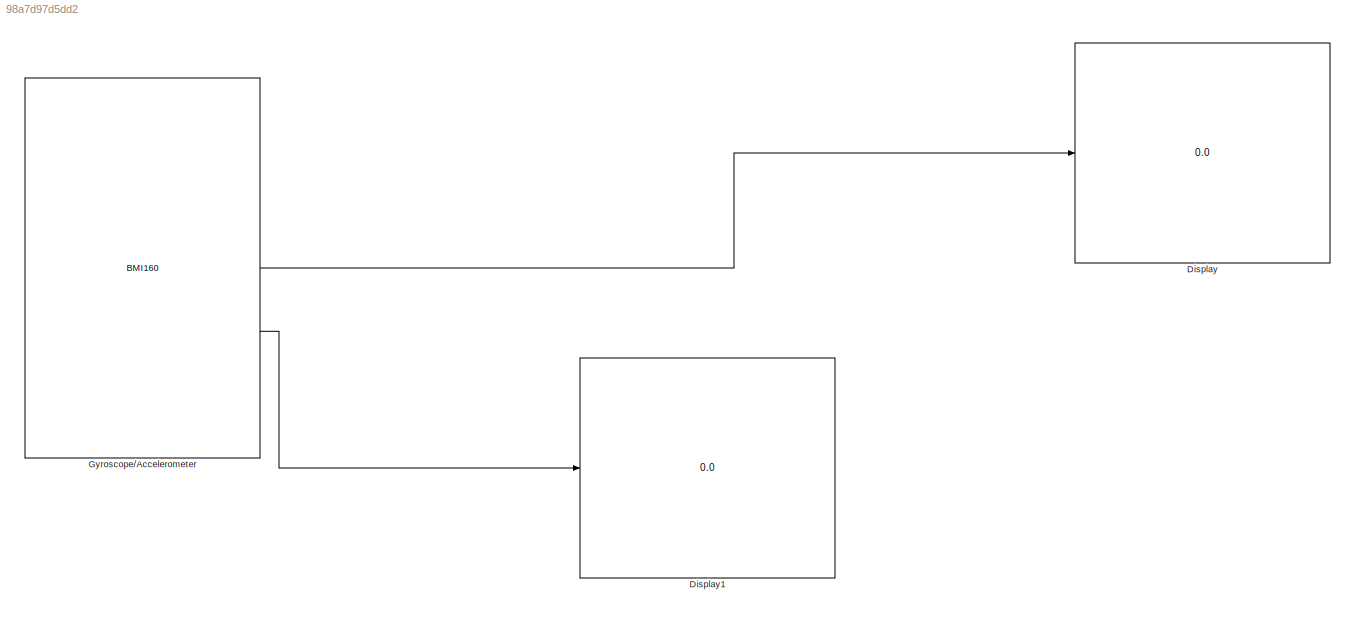
MODEL slx_98a7d97d5dd2
KIND model
CONFIG AbsTol = auto
CONFIG EnableMultiTasking = on
CONFIG FixedStep = baseRate
CONFIG MaxStep = auto
CONFIG MinStep = auto
CONFIG RelTol = 1e-3
CONFIG SampleTimeConstraint = Unconstrained
CONFIG SolverName = FixedStepAuto
CONFIG StartTime = 0.0
CONFIG StopTime = inf
BLOCK [Display] Display
  Decimation = 1
BLOCK [Display] Display1
  Decimation = 1
BLOCK [Reference] Gyroscope//Accelerometer  REF=nvidiaIMUSensorslib/BMI160
  SourceBlock = nvidiaIMUSensorslib/BMI160
  SourceType = nvidiacoder.sensors.BMI160Block
LINE Gyroscope//Accelerometer:1 -> Display:1
LINE Gyroscope//Accelerometer:2 -> Display1:1
